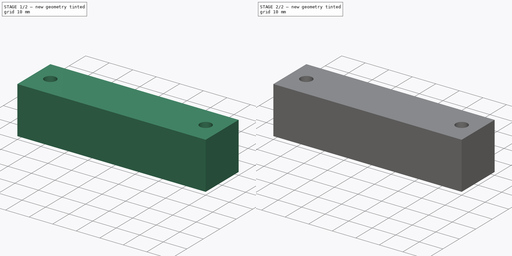
[diagram: build sequence overview — one tinted view per stage of 2, left to right]
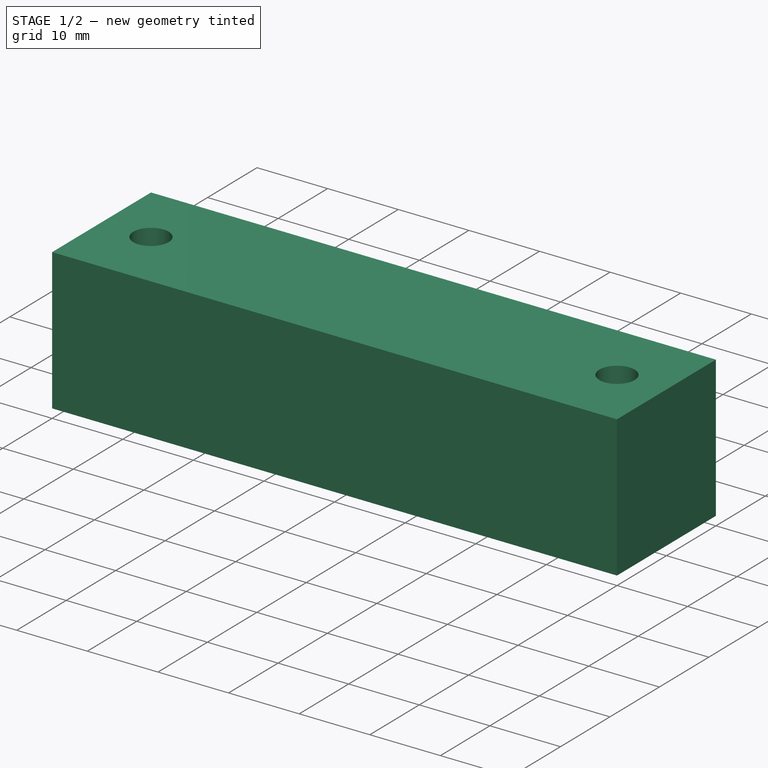
[diagram: stage 1 of 2 — iso view after this stage's code; geometry added in this stage tinted green]
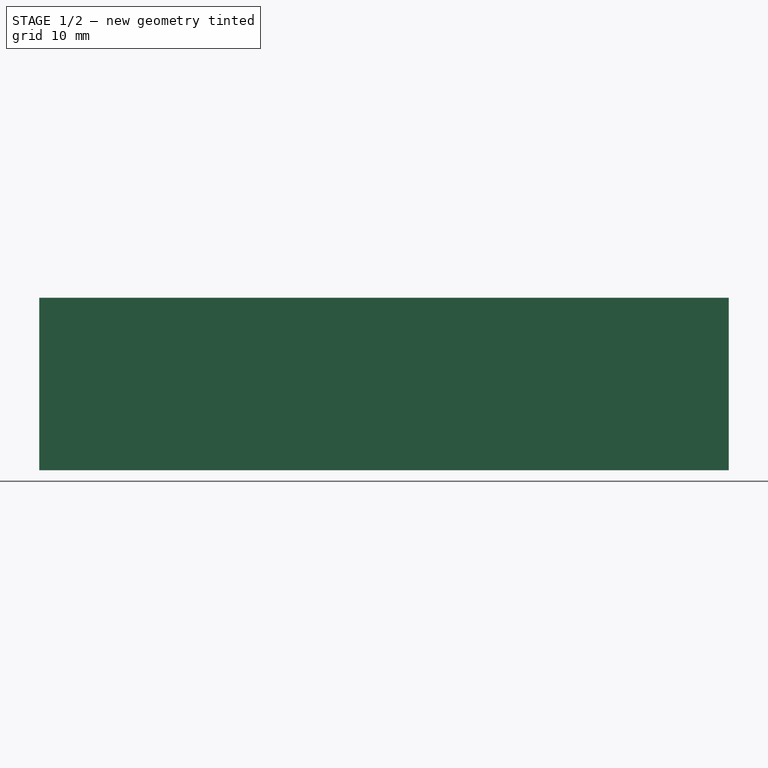
[diagram: stage 1 of 2 — front view after this stage's code; geometry added in this stage tinted green]
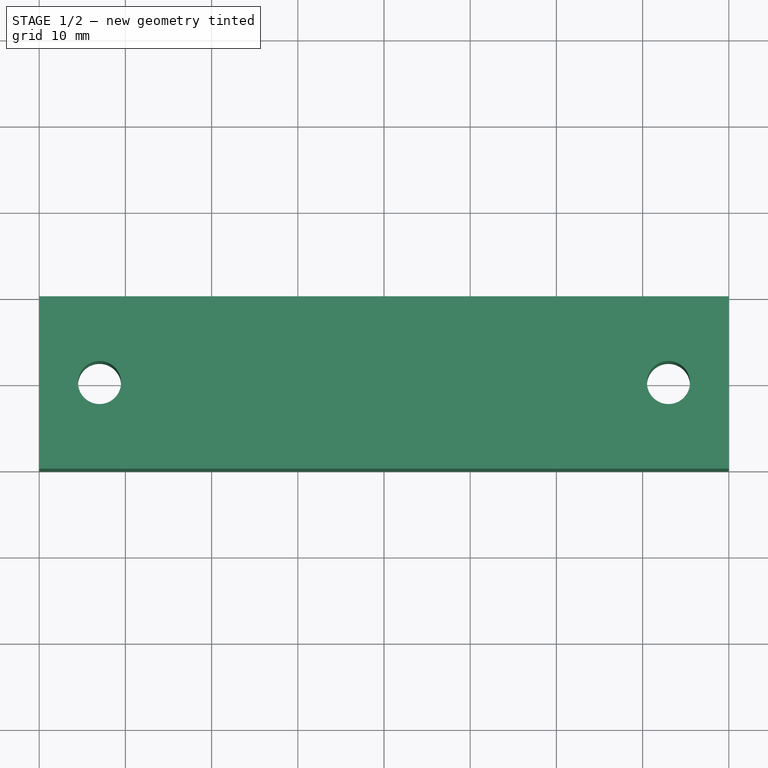
[diagram: stage 1 of 2 — top view after this stage's code; geometry added in this stage tinted green]
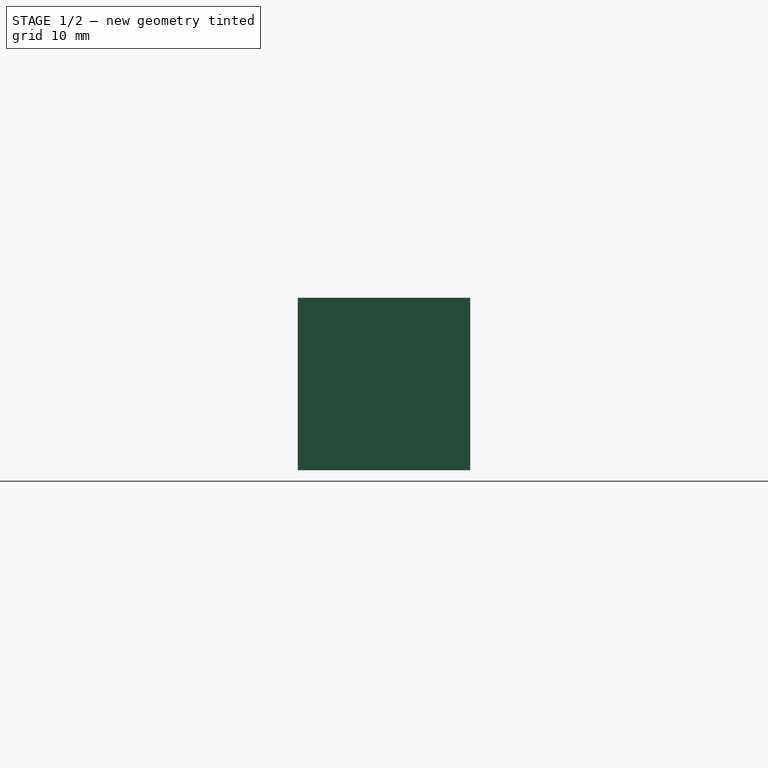
[diagram: stage 1 of 2 — right view after this stage's code; geometry added in this stage tinted green]
FCSTD DOCUMENT  (FreeCAD 0.15R4671 (Git))
Label: base-left-bottom
License: All rights reserved
LicenseURL: http://en.wikipedia.org/wiki/All_rights_reserved
objects: Drawing::FeatureView×8, Sketcher::SketchObject×2, Drawing::FeatureViewPart×2, PartDesign::Pad×1, PartDesign::Pocket×1, Drawing::FeaturePage×1
note: 6 computed .brp shape members not serialized (recipe doc carries the construction recipe); baked Part::Feature solids carry a one-line shape summary decoded from their .brp

FEATURE [Sketcher::SketchObject] Sketch  label="main-sketch"
  sketch-geometry (6):
    g0: LineSegment StartX=-40 StartY=10 StartZ=0 EndX=40 EndY=10 EndZ=0
    g1: LineSegment StartX=40 StartY=10 StartZ=0 EndX=40 EndY=-10 EndZ=0
    g2: LineSegment StartX=40 StartY=-10 StartZ=0 EndX=-40 EndY=-10 EndZ=0
    g3: LineSegment StartX=-40 StartY=-10 StartZ=0 EndX=-40 EndY=10 EndZ=0
    g4: Circle CenterX=-33 CenterY=0 CenterZ=0 NormalX=0 NormalY=0 NormalZ=1 Radius=2.5
    g5: Circle CenterX=33 CenterY=0 CenterZ=0 NormalX=0 NormalY=0 NormalZ=1 Radius=2.5
  constraints (17):
    c: Coincident(g0,g1)
    c: Coincident(g1,g2)
    c: Coincident(g2,g3)
    c: Coincident(g3,g0)
    c: Horizontal(g0)
    c: Horizontal(g2)
    c: Vertical(g1)
    c: Vertical(g3)
    c: Symmetric(g0,g0,g-2)
    c: Symmetric(g0,g1,g-1)
    c: PointOnObject(g5,g-1)
    c: Symmetric(g4,g5,g-2)
    c: DistanceX(g5,g4) = -66
    c: DistanceX(g2,g1) = 80
    c: DistanceY(g0,g1) = -20
    c: Radius(g5) = 2.5
    c: Equal(g5,g4)
FEATURE [PartDesign::Pad] Pad  label="base"
  Length = 20
  Length2 = 100
  Sketch = -> Sketch
  Type = 0
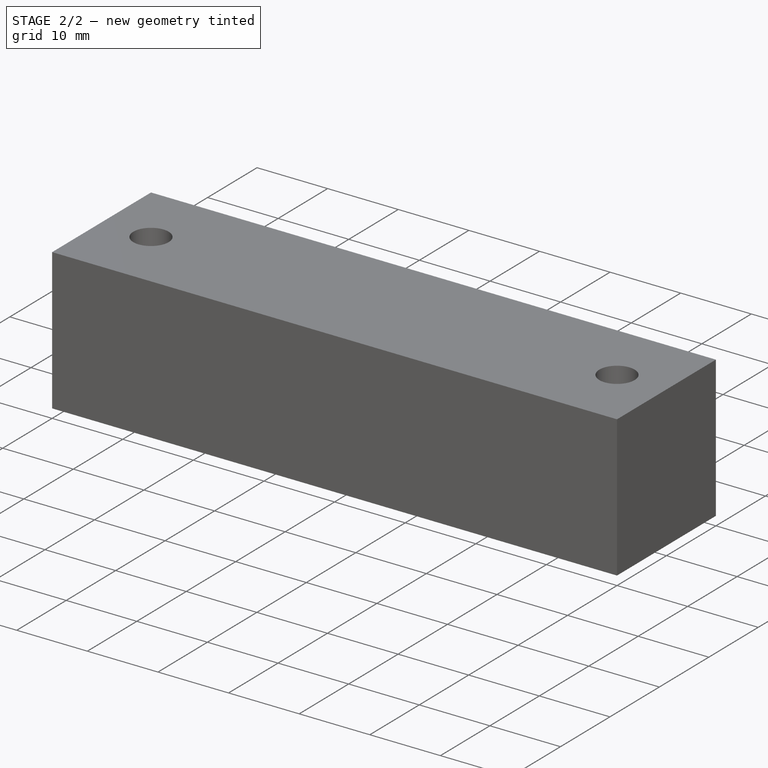
[diagram: stage 2 of 2 — iso view after this stage's code; geometry added in this stage tinted green]
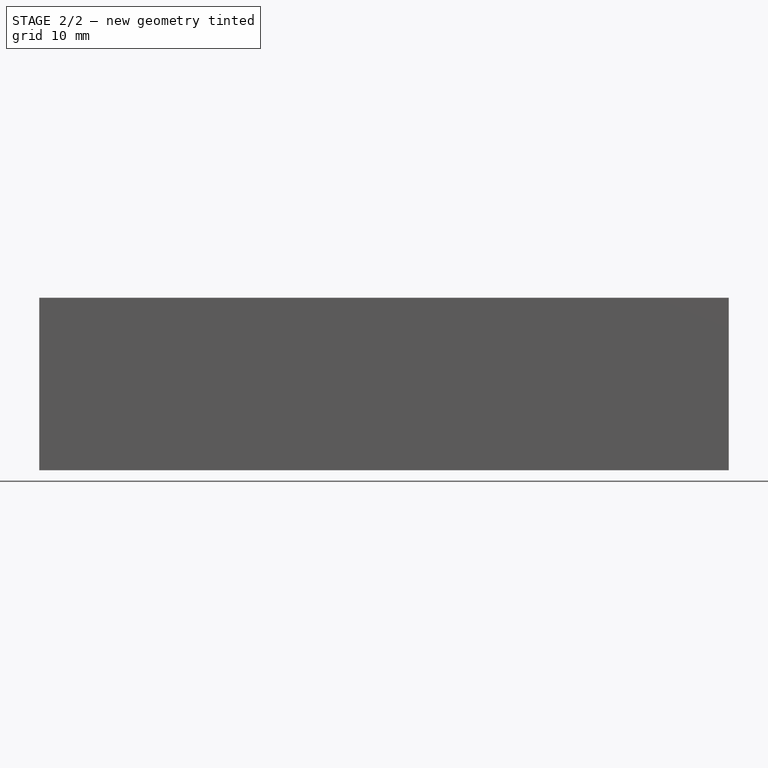
[diagram: stage 2 of 2 — front view after this stage's code; geometry added in this stage tinted green]
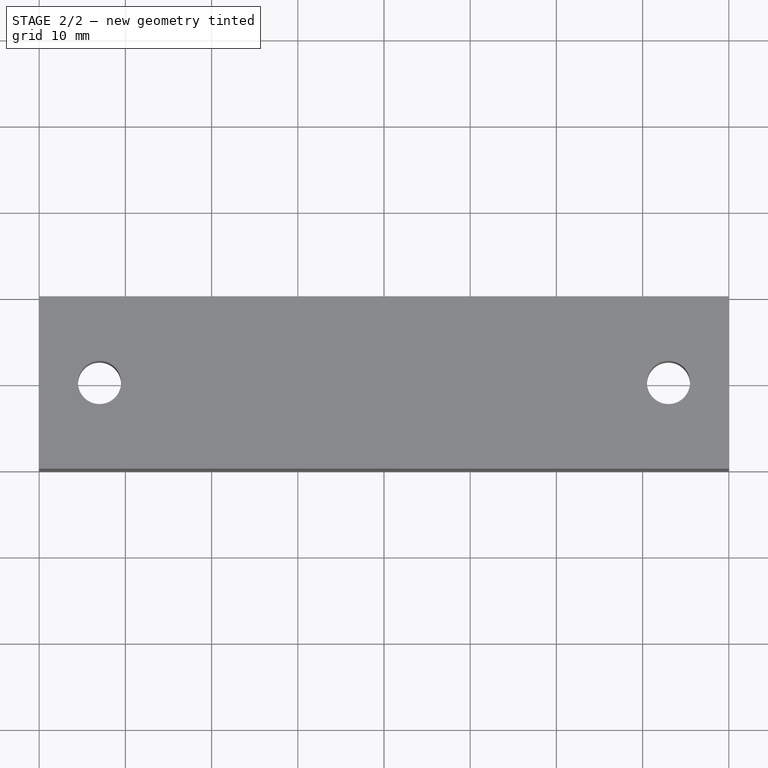
[diagram: stage 2 of 2 — top view after this stage's code; geometry added in this stage tinted green]
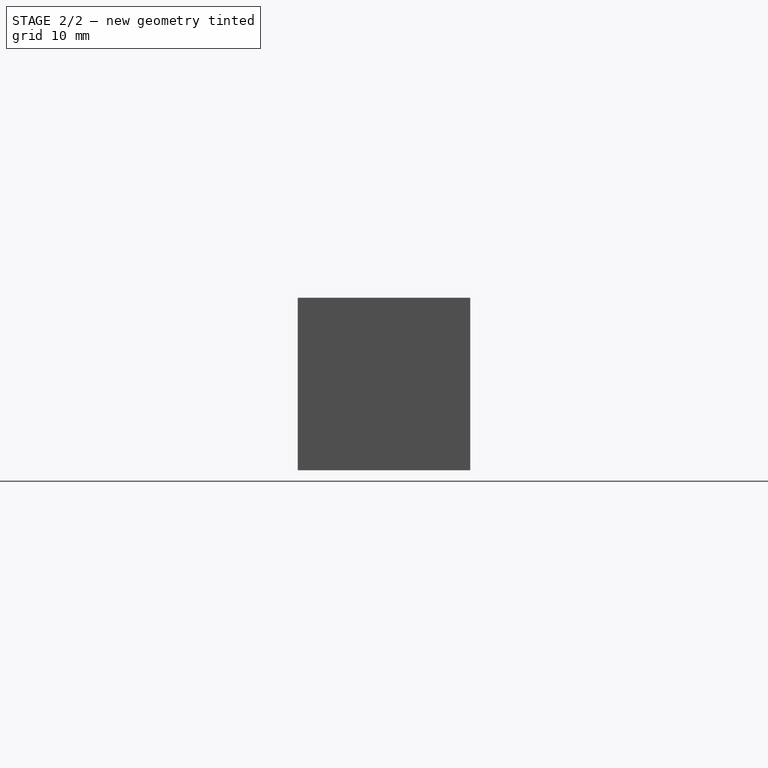
[diagram: stage 2 of 2 — right view after this stage's code; geometry added in this stage tinted green]
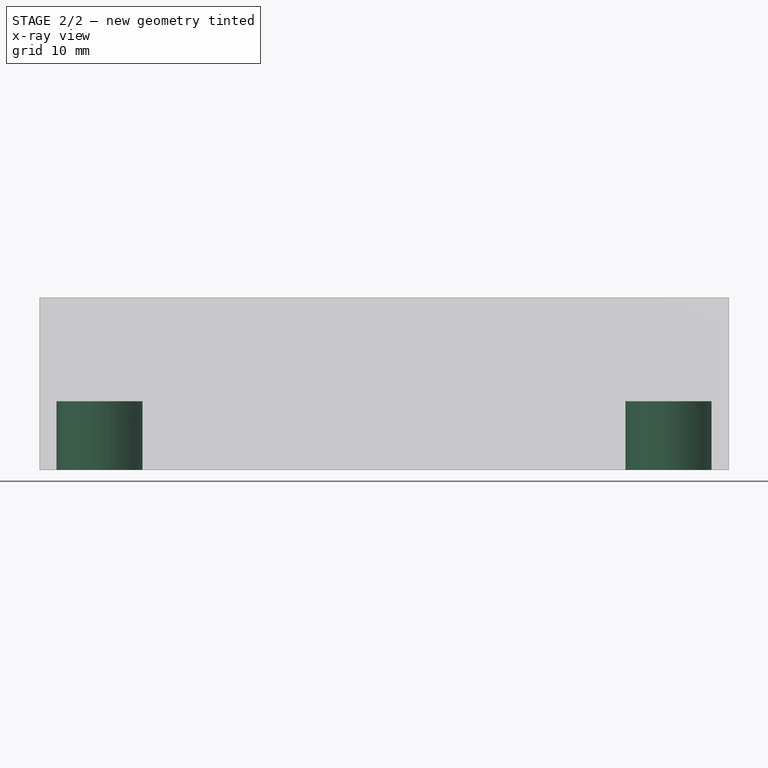
[diagram: stage 2 of 2 — x-ray composite at the front view; earlier geometry ghosted, this stage's added geometry solid]
FEATURE [Sketcher::SketchObject] Sketch001  label="bottom-holes-sketch"
  Placement = pos=(0,0,0) rot=(1,0,0;3.14159rad)
  Support = -> Pad [Face7]
  sketch-geometry (2):
    g0: Circle CenterX=-33 CenterY=0 CenterZ=0 NormalX=0 NormalY=0 NormalZ=1 Radius=5
    g1: Circle CenterX=33 CenterY=0 CenterZ=0 NormalX=0 NormalY=0 NormalZ=1 Radius=5
  constraints (5):
    c: PointOnObject(g1,g-1)
    c: Symmetric(g1,g0,g-2)
    c: Radius(g0) = 5
    c: Equal(g0,g1)
    c: DistanceX(g0,g1) = 66
FEATURE [PartDesign::Pocket] Pocket  label="base-left-bottom"
  Length = 8
  Sketch = -> Sketch001
  Type = 0
FEATURE [Drawing::FeatureViewPart] Ortho  label="Ortho_0_0"
  Direction = (0,-1,0)
  HiddenWidth = 0.15
  LineWidth = 0.35
  Rotation = 90
  Scale = 1.5
  ShowHiddenLines = true
  ShowSmoothLines = false
  Source = -> Pocket
  Tolerance = 0.05
  ViewResult = <blob: 4493 chars omitted>
  Visible = true
  X = 105
  Y = 219.667
FEATURE [Drawing::FeatureViewPart] Ortho001  label="Ortho_0_1"
  Direction = (0,0,1)
  HiddenWidth = 0.15
  LineWidth = 0.35
  Rotation = 0
  Scale = 1.5
  ShowHiddenLines = true
  ShowSmoothLines = false
  Source = -> Pocket
  Tolerance = 0.05
  ViewResult = <g id="Ortho_0_1"\n   transform="rotate(0,105,92.3333) translate(105,92.3333) scale(1.5,1.5)"\n  >\n<g   stroke="rgb(0, 0, 0)"\n   stroke-width="0.1"\n   stroke-linecap="butt"\n   stroke-linejoin="miter"\n   stroke-dasharray="0.2,0.1"\n   fill="none"\n   transform="scale(1,-1)"\n  >\n<path id= "1" d=" M -40 10 L 40 10 " />\n<path id= "2" d=" M -40 -10 L -40 10 " />\n<path id= "3" d=" M 40 10 L 40 -10 " />\n<path id= "4" d=" M 40 -10 L -40 -10 " />\n<circle cx ="-33" cy ="0" r ="5" /><circle cx ="33" cy ="0" r ="5" /><circle cx ="-33" cy ="0" r ="5" /><circle cx ="33" cy ="0" r ="5" /><circle cx ="33" cy ="0" r ="2.5" /><circle cx ="-33" cy ="0" r ="2.5" /></g>\n<g   stroke="rgb(0, 0, 0)"\n   stroke-width="0.233333"\n   stroke-linecap="butt"\n   stroke-linejoin="miter"\n   fill="none"\n   transform="scale(1,-1)"\n  >\n<path id= "1" d=" M -40 10 L 40 10 " />\n<path id= "2" d=" M -40 -10 L -40 10 " />\n<path id= "3" d=" M 40 10 L 40 -10 " />\n<path id= "4" d=" M 40 -10 L -40 -10 " />\n<circle cx ="33" cy ="0" r ="2.5" /><circle cx ="-33" cy ="0" r ="2.5" /></g>\n</g>
  Visible = true
  X = 105
  Y = 92.3333
FEATURE [Drawing::FeatureView] dim001
  Rotation = 0
  ViewResult = <g> \n  <line x1="55.500000" y1="94.333300" x2="55.500000" y2="119.988574" style="stroke:rgb(0,0,255);stroke-width:0.50" />\n<line x1="154.500000" y1="94.333300" x2="154.500000" y2="119.988574" style="stroke:rgb(0,0,255);stroke-width:0.50" />\n<line x1="55.500000" y1="118.988574" x2="154.500000" y2="118.988574" style="stroke:rgb(0,0,255);stroke-width:0.50" /> \n  <polygon points="154.500000,118.988574 151.500000,117.988574 150.500000,118.988574 151.500000,119.988574" style="fill:rgb(0,0,255);stroke:rgb(0,0,255);stroke-width:0" /><polygon points="55.500000,118.988574 58.500000,119.988574 59.500000,118.988574 58.500000,117.988574" style="fill:rgb(0,0,255);stroke:rgb(0,0,255);stroke-width:0" /> \n  <text x="105.000000" y="116.988574" font-family="inherit" font-size="3.6" fill="rgb(0,0,255)" text-anchor="middle" transform="rotate(0.000000 105.000000,116.988574)" >66</text> </g>
  Visible = true
  X = 0
  Y = 0
FEATURE [Drawing::FeatureView] dim002
  Rotation = 0
  ViewResult = <g> \n  <line x1="45.000000" y1="109.333300" x2="45.000000" y2="130.569773" style="stroke:rgb(0,0,255);stroke-width:0.50" />\n<line x1="165.000000" y1="109.333300" x2="165.000000" y2="130.569773" style="stroke:rgb(0,0,255);stroke-width:0.50" />\n<line x1="45.000000" y1="129.569773" x2="165.000000" y2="129.569773" style="stroke:rgb(0,0,255);stroke-width:0.50" /> \n  <polygon points="165.000000,129.569773 162.000000,128.569773 161.000000,129.569773 162.000000,130.569773" style="fill:rgb(0,0,255);stroke:rgb(0,0,255);stroke-width:0" /><polygon points="45.000000,129.569773 48.000000,130.569773 49.000000,129.569773 48.000000,128.569773" style="fill:rgb(0,0,255);stroke:rgb(0,0,255);stroke-width:0" /> \n  <text x="105.000000" y="127.569773" font-family="inherit" font-size="3.6" fill="rgb(0,0,255)" text-anchor="middle" transform="rotate(0.000000 105.000000,127.569773)" >80</text> </g>
  Visible = true
  X = 0
  Y = 0
FEATURE [Drawing::FeatureView] dim003
  Rotation = 0
  ViewResult = <g> \n  <line x1="43.000000" y1="77.333300" x2="28.547498" y2="77.333300" style="stroke:rgb(0,0,255);stroke-width:0.50" />\n<line x1="43.000000" y1="107.333300" x2="28.547498" y2="107.333300" style="stroke:rgb(0,0,255);stroke-width:0.50" />\n<line x1="29.547498" y1="77.333300" x2="29.547498" y2="107.333300" style="stroke:rgb(0,0,255);stroke-width:0.50" /> \n  <polygon points="29.547498,107.333300 30.547498,104.333300 29.547498,103.333300 28.547498,104.333300" style="fill:rgb(0,0,255);stroke:rgb(0,0,255);stroke-width:0" /><polygon points="29.547498,77.333300 28.547498,80.333300 29.547498,81.333300 30.547498,80.333300" style="fill:rgb(0,0,255);stroke:rgb(0,0,255);stroke-width:0" /> \n  <text x="27.547498" y="92.333300" font-family="inherit" font-size="3.6" fill="rgb(0,0,255)" text-anchor="middle" transform="rotate(-90.000000 27.547498,92.333300)" >20</text> </g>
  Visible = true
  X = 0
  Y = 0
FEATURE [Drawing::FeatureView] dim004
  Rotation = 0
  ViewResult = <g> \n  <line x1="46.000000" y1="207.667000" x2="34.648507" y2="207.667000" style="stroke:rgb(0,0,255);stroke-width:0.50" />\n<line x1="46.000000" y1="219.667000" x2="34.648507" y2="219.667000" style="stroke:rgb(0,0,255);stroke-width:0.50" />\n<line x1="35.648507" y1="207.667000" x2="35.648507" y2="219.667000" style="stroke:rgb(0,0,255);stroke-width:0.50" /> \n  <polygon points="35.648507,219.667000 36.648507,216.667000 35.648507,215.667000 34.648507,216.667000" style="fill:rgb(0,0,255);stroke:rgb(0,0,255);stroke-width:0" /><polygon points="35.648507,207.667000 34.648507,210.667000 35.648507,211.667000 36.648507,210.667000" style="fill:rgb(0,0,255);stroke:rgb(0,0,255);stroke-width:0" /> \n  <text x="33.648507" y="213.667000" font-family="inherit" font-size="3.6" fill="rgb(0,0,255)" text-anchor="middle" transform="rotate(-90.000000 33.648507,213.667000)" >8</text> </g>
  Visible = true
  X = 0
  Y = 0
FEATURE [Drawing::FeatureView] dim005
  Rotation = 0
  ViewResult = <g> \n  <line x1="43.000000" y1="189.667000" x2="19.777384" y2="189.667000" style="stroke:rgb(0,0,255);stroke-width:0.50" />\n<line x1="43.000000" y1="219.667000" x2="19.777384" y2="219.667000" style="stroke:rgb(0,0,255);stroke-width:0.50" />\n<line x1="20.777384" y1="189.667000" x2="20.777384" y2="219.667000" style="stroke:rgb(0,0,255);stroke-width:0.50" /> \n  <polygon points="20.777384,219.667000 21.777384,216.667000 20.777384,215.667000 19.777384,216.667000" style="fill:rgb(0,0,255);stroke:rgb(0,0,255);stroke-width:0" /><polygon points="20.777384,189.667000 19.777384,192.667000 20.777384,193.667000 21.777384,192.667000" style="fill:rgb(0,0,255);stroke:rgb(0,0,255);stroke-width:0" /> \n  <text x="18.777384" y="204.667000" font-family="inherit" font-size="3.6" fill="rgb(0,0,255)" text-anchor="middle" transform="rotate(-90.000000 18.777384,204.667000)" >20</text> </g>
  Visible = true
  X = 0
  Y = 0
FEATURE [Drawing::FeatureView] dim006
  Rotation = 0
  ViewResult = <g> \n  <line x1="51.750000" y1="187.667000" x2="51.750000" y2="179.035505" style="stroke:rgb(0,0,255);stroke-width:0.50" />\n<line x1="59.250000" y1="187.667000" x2="59.250000" y2="179.035505" style="stroke:rgb(0,0,255);stroke-width:0.50" />\n<line x1="51.750000" y1="180.035505" x2="59.250000" y2="180.035505" style="stroke:rgb(0,0,255);stroke-width:0.50" /> \n  <polygon points="59.250000,180.035505 62.250000,181.035505 63.250000,180.035505 62.250000,179.035505" style="fill:rgb(0,0,255);stroke:rgb(0,0,255);stroke-width:0" /><polygon points="51.750000,180.035505 48.750000,179.035505 47.750000,180.035505 48.750000,181.035505" style="fill:rgb(0,0,255);stroke:rgb(0,0,255);stroke-width:0" /> \n  <text x="55.500000" y="178.035505" font-family="inherit" font-size="3.6" fill="rgb(0,0,255)" text-anchor="middle"  >2 x Ø5</text> </g>
  Visible = true
  X = 0
  Y = 0
FEATURE [Drawing::FeatureView] dim007
  Rotation = 0
  ViewResult = <g> \n  <line x1="63.000000" y1="221.667000" x2="63.000000" y2="230.819268" style="stroke:rgb(0,0,255);stroke-width:0.50" />\n<line x1="48.000000" y1="221.667000" x2="48.000000" y2="230.819268" style="stroke:rgb(0,0,255);stroke-width:0.50" />\n<line x1="63.000000" y1="229.819268" x2="48.000000" y2="229.819268" style="stroke:rgb(0,0,255);stroke-width:0.50" /> \n  <polygon points="48.000000,229.819268 51.000000,230.819268 52.000000,229.819268 51.000000,228.819268" style="fill:rgb(0,0,255);stroke:rgb(0,0,255);stroke-width:0" /><polygon points="63.000000,229.819268 60.000000,228.819268 59.000000,229.819268 60.000000,230.819268" style="fill:rgb(0,0,255);stroke:rgb(0,0,255);stroke-width:0" /> \n  <text x="55.500000" y="227.819268" font-family="inherit" font-size="3.6" fill="rgb(0,0,255)" text-anchor="middle"  >2 x Ø10</text> </g>
  Visible = true
  X = 0
  Y = 0
FEATURE [Drawing::FeatureView] dim008
  Rotation = 0
  ViewResult = <g> \n  <line x1="55.500000" y1="94.333300" x2="55.500000" y2="119.990603" style="stroke:rgb(0,0,255);stroke-width:0.50" />\n<line x1="45.000000" y1="109.333300" x2="45.000000" y2="119.990603" style="stroke:rgb(0,0,255);stroke-width:0.50" />\n<line x1="55.500000" y1="118.990603" x2="45.000000" y2="118.990603" style="stroke:rgb(0,0,255);stroke-width:0.50" /> \n  <polygon points="45.000000,118.990603 48.000000,119.990603 49.000000,118.990603 48.000000,117.990603" style="fill:rgb(0,0,255);stroke:rgb(0,0,255);stroke-width:0" /><polygon points="55.500000,118.990603 52.500000,117.990603 51.500000,118.990603 52.500000,119.990603" style="fill:rgb(0,0,255);stroke:rgb(0,0,255);stroke-width:0" /> \n  <text x="50.250000" y="116.990603" font-family="inherit" font-size="3.6" fill="rgb(0,0,255)" text-anchor="middle" transform="rotate(0.000000 50.250000,116.990603)" >7</text> </g>
  Visible = true
  X = 0
  Y = 0
FEATURE [Drawing::FeaturePage] Page
  Group = -> [Ortho,Ortho001,dim001,dim002,dim003,dim004,dim005,dim006,dim007,dim008]
  Template = <path>
note: 1 file-system path scrubbed to <path> (originals preserved in the JSON sidecar)
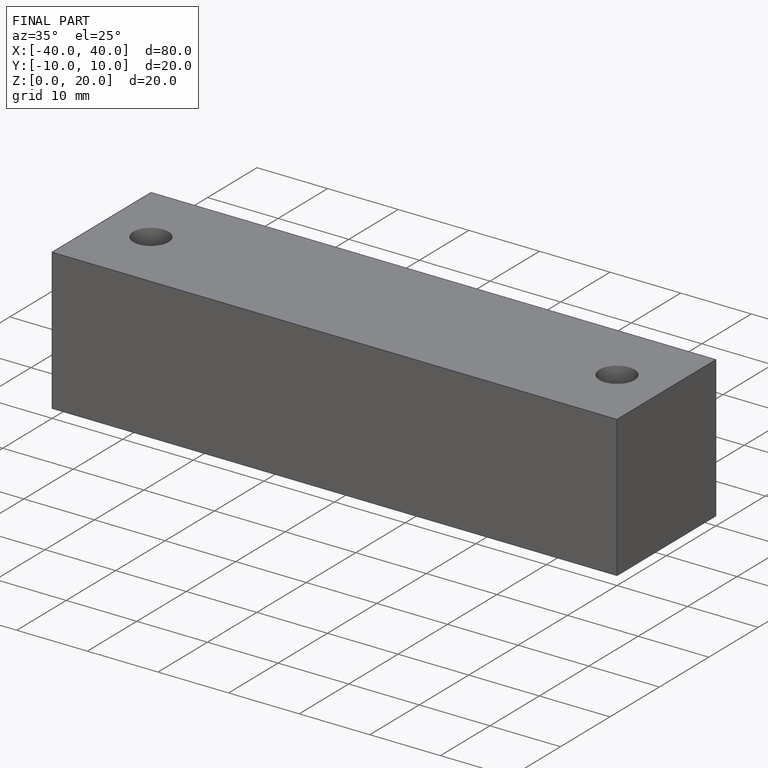
[diagram: finished part — iso view with bounding-box wireframe]
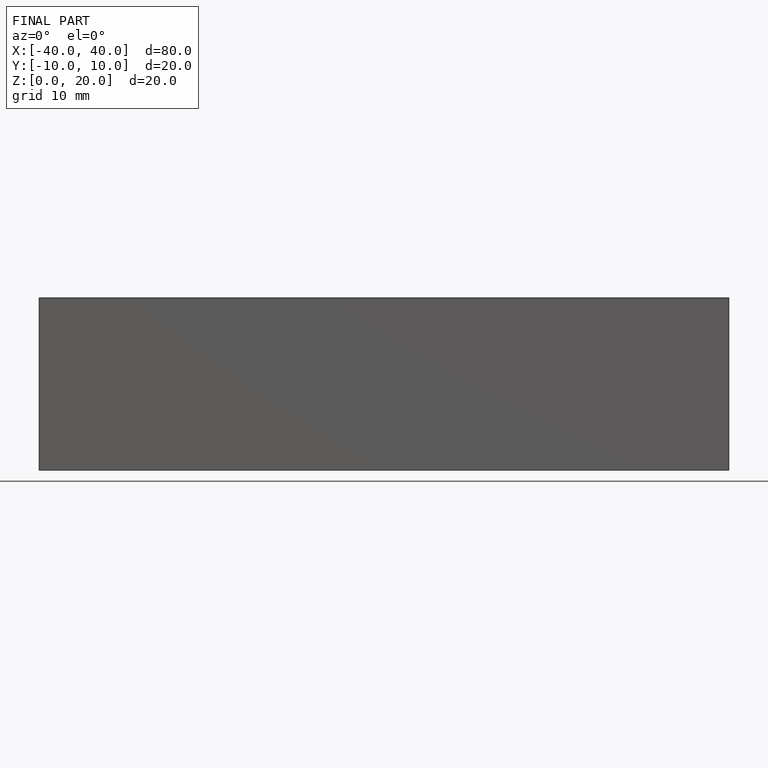
[diagram: finished part — front view with bounding-box wireframe]
